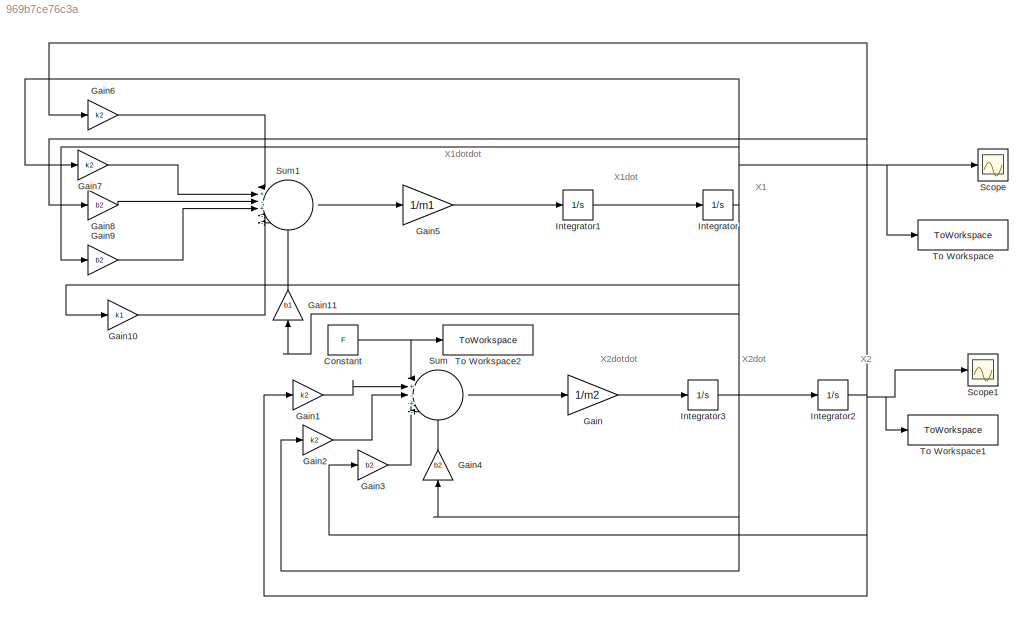
MODEL slx_969b7ce76c3a
KIND model
CONFIG AbsTol = auto
CONFIG EnableMultiTasking = off
CONFIG FixedStep = auto
CONFIG MaxStep = auto
CONFIG MinStep = auto
CONFIG RelTol = 1e-3
CONFIG SampleTimeConstraint = Unconstrained
CONFIG SolverName = VariableStepAuto
CONFIG StartTime = 0.0
CONFIG StopTime = 10.0
BLOCK [Constant] Constant
  Value = F
BLOCK [Gain] Gain
  Gain = 1/m2
BLOCK [Gain] Gain1
  Gain = k2
BLOCK [Gain] Gain10
  Gain = k1
BLOCK [Gain] Gain11
  Gain = b1
  NameLocation = right
BLOCK [Gain] Gain2
  Gain = k2
BLOCK [Gain] Gain3
  Gain = b2
BLOCK [Gain] Gain4
  Gain = b2
  NameLocation = right
BLOCK [Gain] Gain5
  Gain = 1/m1
BLOCK [Gain] Gain6
  Gain = k2
BLOCK [Gain] Gain7
  Gain = k2
BLOCK [Gain] Gain8
  Gain = b2
BLOCK [Gain] Gain9
  Gain = b2
BLOCK [Integrator] Integrator
BLOCK [Integrator] Integrator1
BLOCK [Integrator] Integrator2
BLOCK [Integrator] Integrator3
BLOCK [Scope] Scope
  Floating = off
  NumInputPorts = 1
  ScopeSpecificationString = Simulink.scopes.TimeScopeBlockCfg('CurrentConfiguration', extmgr.ConfigurationSet(extmgr.Configuration('Core','General UI',true),extmgr.Configuration('Core','Source UI',true),extmgr.Configuration('Sources','WiredSimulink',true),extmgr.Configuration('Visuals','Time Domain',true),extmgr.Configuration('Tools','Plot Navigation',true),extmgr.Configuration('Tools','Measurements',true)),'Version','2024a'...<+1ch>
BLOCK [Scope] Scope1
  Floating = off
  NumInputPorts = 1
  ScopeSpecificationString = Simulink.scopes.TimeScopeBlockCfg('CurrentConfiguration', extmgr.ConfigurationSet(extmgr.Configuration('Core','General UI',true),extmgr.Configuration('Core','Source UI',true),extmgr.Configuration('Sources','WiredSimulink',true,'DataLoggingVariableName','ScopeData1'),extmgr.Configuration('Visuals','Time Domain',true),extmgr.Configuration('Tools','Plot Navigation',true),extmgr.Configuration('Tools',...<+40ch>
BLOCK [Sum] Sum
  Inputs = |+-+-+
BLOCK [Sum] Sum1
  Inputs = |+-+---
BLOCK [ToWorkspace] To Workspace
  FixptAsFi = on
  MaxDataPoints = inf
  SampleTime = -1
  SaveFormat = Timeseries
  VariableName = x1
BLOCK [ToWorkspace] To Workspace1
  FixptAsFi = on
  MaxDataPoints = inf
  SampleTime = -1
  SaveFormat = Timeseries
  VariableName = x2
BLOCK [ToWorkspace] To Workspace2
  FixptAsFi = on
  MaxDataPoints = inf
  SampleTime = -1
  SaveFormat = Timeseries
  VariableName = F
ANNOTATION (root): X1
ANNOTATION (root): X1dot
ANNOTATION (root): X1dotdot
ANNOTATION (root): X2
ANNOTATION (root): X2dot
ANNOTATION (root): X2dotdot
NET Constant:1 -> Sum:1, To Workspace2:1
LINE Gain10:1 -> Sum1:5
LINE Gain11:1 -> Sum1:6
LINE Gain1:1 -> Sum:2
LINE Gain2:1 -> Sum:3
LINE Gain3:1 -> Sum:4
LINE Gain4:1 -> Sum:5
LINE Gain5:1 -> Integrator1:1
LINE Gain6:1 -> Sum1:1
LINE Gain7:1 -> Sum1:2
LINE Gain8:1 -> Sum1:3
LINE Gain9:1 -> Sum1:4
LINE Gain:1 -> Integrator3:1
LINE Integrator1:1 -> Integrator:1
NET Integrator2:1 -> Gain1:1, Gain3:1, Gain6:1, Gain8:1, Scope1:1, To Workspace1:1
LINE Integrator3:1 -> Integrator2:1
NET Integrator:1 -> Gain10:1, Gain11:1, Gain2:1, Gain4:1, Gain7:1, Gain9:1, Scope:1, To Workspace:1
LINE Sum1:1 -> Gain5:1
LINE Sum:1 -> Gain:1
note: NET lines group one-source signal fan-out (src -> all destinations, sorted); 1:1 wires keep LINE
